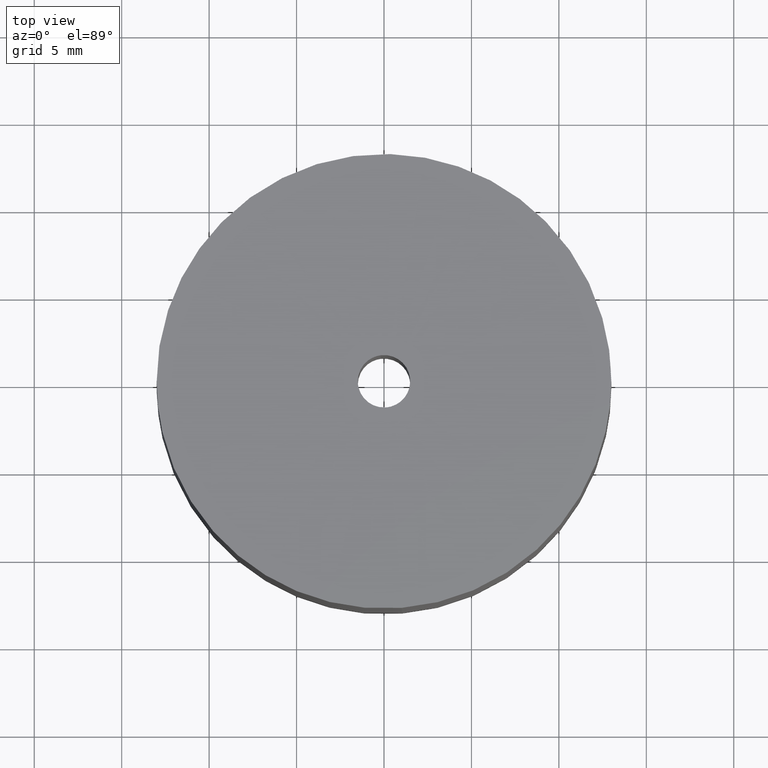
[diagram: clean part render]
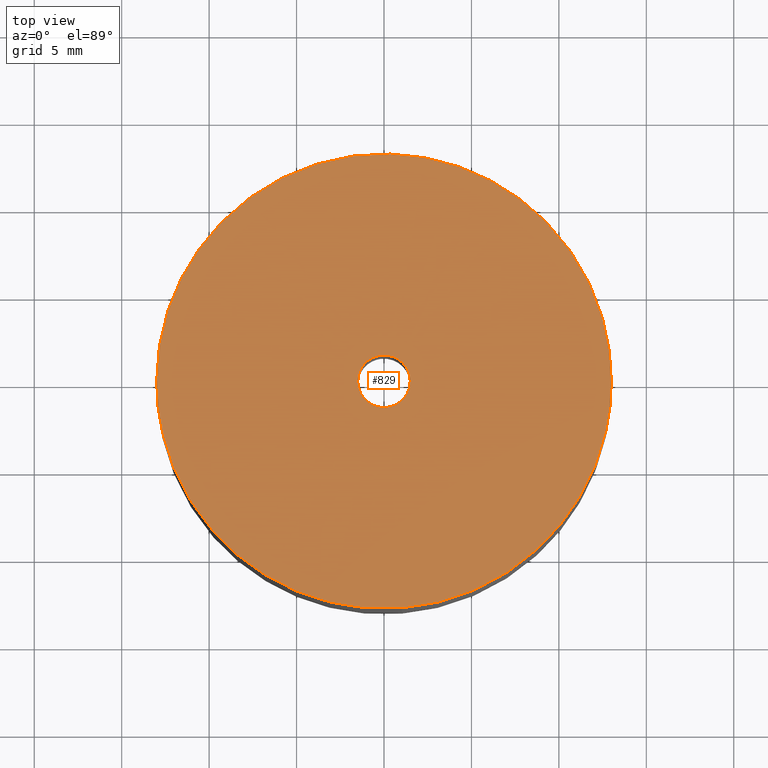
[diagram: same view with one face highlighted and labeled with its STEP entity id]
A machine part, top view. The second image highlights one B-rep face of the part: STEP entity #829.
In plain terms, the highlighted face is a freeform B-spline surface patch.
Its self-contained STEP definition (entity closure, byte-faithful):
#79=CARTESIAN_POINT('',(12.687596976655650,-2.832822436703005,20.0));
#80=VERTEX_POINT('',#79);
#86=CARTESIAN_POINT('',(1.019960790914386,-12.959925925133270,20.0));
#87=VERTEX_POINT('',#86);
#88=CARTESIAN_POINT('',(12.687596976655650,-2.832822436703005,19.999999999999996));
#89=CARTESIAN_POINT('',(10.594716066193335,-12.206381883309835,20.000000000000004));
#90=CARTESIAN_POINT('',(1.019960790914386,-12.959925925133268,20.000000000000004));
#98=(BOUNDED_CURVE()B_SPLINE_CURVE(2,(#88,#89,#90),.UNSPECIFIED.,.F.,.U.)B_SPLINE_CURVE_WITH_KNOTS((3,3),(0.537286561689504,0.736331399222893),.UNSPECIFIED.)CURVE()GEOMETRIC_REPRESENTATION_ITEM()RATIONAL_B_SPLINE_CURVE((0.925662738128303,0.762027682414940,0.969723561921979))REPRESENTATION_ITEM(''));
#99=EDGE_CURVE('',#80,#87,#98,.T.);
#213=CARTESIAN_POINT('',(-13.0,0.0,20.0));
#214=VERTEX_POINT('',#213);
#215=CARTESIAN_POINT('',(1.019960790914386,-12.959925925133268,20.000000000000004));
#216=CARTESIAN_POINT('',(0.510767647031337,-13.0,20.0));
#217=CARTESIAN_POINT('',(0.0,-13.0,20.0));
#218=CARTESIAN_POINT('',(-13.0,-13.0,20.0));
#219=CARTESIAN_POINT('',(-13.0,0.0,20.0));
#227=(BOUNDED_CURVE()B_SPLINE_CURVE(2,(#215,#216,#217,#218,#219),.UNSPECIFIED.,.F.,.U.)B_SPLINE_CURVE_WITH_KNOTS((3,2,3),(0.736331399222893,0.750000000000000,1.0),.UNSPECIFIED.)CURVE()GEOMETRIC_REPRESENTATION_ITEM()RATIONAL_B_SPLINE_CURVE((0.969723561921979,0.983986238086868,1.0,0.707106781186547,1.0))REPRESENTATION_ITEM(''));
#228=EDGE_CURVE('',#87,#214,#227,.T.);
#230=CARTESIAN_POINT('',(13.0,0.0,20.0));
#231=VERTEX_POINT('',#230);
#232=CARTESIAN_POINT('',(-13.0,0.0,20.0));
#233=CARTESIAN_POINT('',(-13.0,13.0,20.0));
#234=CARTESIAN_POINT('',(0.0,13.0,20.0));
#235=CARTESIAN_POINT('',(13.0,13.0,20.0));
#236=CARTESIAN_POINT('',(13.0,0.0,20.0));
#244=(BOUNDED_CURVE()B_SPLINE_CURVE(2,(#232,#233,#234,#235,#236),.UNSPECIFIED.,.F.,.U.)B_SPLINE_CURVE_WITH_KNOTS((3,2,3),(0.0,0.250000000000000,0.500000000000000),.UNSPECIFIED.)CURVE()GEOMETRIC_REPRESENTATION_ITEM()RATIONAL_B_SPLINE_CURVE((1.0,0.707106781186547,1.0,0.707106781186547,1.0))REPRESENTATION_ITEM(''));
#245=EDGE_CURVE('',#214,#231,#244,.T.);
#247=CARTESIAN_POINT('',(13.0,0.0,20.0));
#248=CARTESIAN_POINT('',(13.000000000000005,-1.433637086046247,20.000000000000004));
#249=CARTESIAN_POINT('',(12.687596976655650,-2.832822436703005,19.999999999999996));
#257=(BOUNDED_CURVE()B_SPLINE_CURVE(2,(#247,#248,#249),.UNSPECIFIED.,.F.,.U.)B_SPLINE_CURVE_WITH_KNOTS((3,3),(0.500000000000000,0.537286561689504),.UNSPECIFIED.)CURVE()GEOMETRIC_REPRESENTATION_ITEM()RATIONAL_B_SPLINE_CURVE((1.0,0.956316075713099,0.925662738128303))REPRESENTATION_ITEM(''));
#258=EDGE_CURVE('',#231,#80,#257,.T.);
#286=CARTESIAN_POINT('',(-0.177051352032236,1.489514289539901,20.0));
#287=VERTEX_POINT('',#286);
#288=CARTESIAN_POINT('',(1.500000000000000,0.0,20.0));
#289=VERTEX_POINT('',#288);
#290=CARTESIAN_POINT('',(-0.177051352032236,1.489514289539901,19.999999999999996));
#291=CARTESIAN_POINT('',(-0.088836179525462,1.500000000000000,20.000000000000004));
#292=CARTESIAN_POINT('',(0.0,1.500000000000000,20.0));
#293=CARTESIAN_POINT('',(1.500000000000000,1.500000000000000,19.999999999999996));
#294=CARTESIAN_POINT('',(1.500000000000000,0.0,20.0));
#302=(BOUNDED_CURVE()B_SPLINE_CURVE(2,(#290,#291,#292,#293,#294),.UNSPECIFIED.,.F.,.U.)B_SPLINE_CURVE_WITH_KNOTS((3,2,3),(0.229562473504956,0.250000000000000,0.500000000000000),.UNSPECIFIED.)CURVE()GEOMETRIC_REPRESENTATION_ITEM()RATIONAL_B_SPLINE_CURVE((0.956026754166937,0.976055948321126,1.0,0.707106781186548,1.0))REPRESENTATION_ITEM(''));
#303=EDGE_CURVE('',#287,#289,#302,.T.);
#344=CARTESIAN_POINT('',(0.091572809317482,-1.497202197631871,20.0));
#345=VERTEX_POINT('',#344);
#351=CARTESIAN_POINT('',(1.500000000000000,0.0,20.0));
#352=CARTESIAN_POINT('',(1.500000000000000,-1.411059100329843,20.0));
#353=CARTESIAN_POINT('',(0.091572809317482,-1.497202197631871,20.0));
#361=(BOUNDED_CURVE()B_SPLINE_CURVE(2,(#351,#352,#353),.UNSPECIFIED.,.F.,.U.)B_SPLINE_CURVE_WITH_KNOTS((3,3),(0.500000000000000,0.739332962238465),.UNSPECIFIED.)CURVE()GEOMETRIC_REPRESENTATION_ITEM()RATIONAL_B_SPLINE_CURVE((1.0,0.719603993287270,0.976072041665695))REPRESENTATION_ITEM(''));
#362=EDGE_CURVE('',#289,#345,#361,.T.);
#385=CARTESIAN_POINT('',(-1.500000000000000,0.0,20.0));
#386=VERTEX_POINT('',#385);
#387=CARTESIAN_POINT('',(-1.500000000000000,0.0,20.0));
#388=CARTESIAN_POINT('',(-1.500000000000000,1.332261788842205,20.000000000000004));
#389=CARTESIAN_POINT('',(-0.177051352032237,1.489514289539901,20.000000000000004));
#397=(BOUNDED_CURVE()B_SPLINE_CURVE(2,(#387,#388,#389),.UNSPECIFIED.,.F.,.U.)B_SPLINE_CURVE_WITH_KNOTS((3,3),(0.0,0.229562473504956),.UNSPECIFIED.)CURVE()GEOMETRIC_REPRESENTATION_ITEM()RATIONAL_B_SPLINE_CURVE((1.0,0.731050832865422,0.956026754166937))REPRESENTATION_ITEM(''));
#398=EDGE_CURVE('',#386,#287,#397,.T.);
#400=CARTESIAN_POINT('',(0.091572809317482,-1.497202197631870,20.0));
#401=CARTESIAN_POINT('',(0.045829144963122,-1.500000000000000,19.999999999999996));
#402=CARTESIAN_POINT('',(0.0,-1.500000000000000,20.0));
#403=CARTESIAN_POINT('',(-1.500000000000000,-1.500000000000000,19.999999999999996));
#404=CARTESIAN_POINT('',(-1.500000000000000,0.0,20.0));
#412=(BOUNDED_CURVE()B_SPLINE_CURVE(2,(#400,#401,#402,#403,#404),.UNSPECIFIED.,.F.,.U.)B_SPLINE_CURVE_WITH_KNOTS((3,2,3),(0.739332962238466,0.750000000000000,1.0),.UNSPECIFIED.)CURVE()GEOMETRIC_REPRESENTATION_ITEM()RATIONAL_B_SPLINE_CURVE((0.976072041665695,0.987502787899278,1.0,0.707106781186548,1.0))REPRESENTATION_ITEM(''));
#413=EDGE_CURVE('',#345,#386,#412,.T.);
#812=CARTESIAN_POINT('',(14.298699949606950,-14.294911992558539,20.0));
#813=CARTESIAN_POINT('',(-14.298700646981301,-14.294911992558539,20.0));
#814=CARTESIAN_POINT('',(14.298699949606950,14.298520439871851,20.0));
#815=CARTESIAN_POINT('',(-14.298700646981301,14.298520439871851,20.0));
#816=B_SPLINE_SURFACE_WITH_KNOTS('',1,1,((#812,#814),(#813,#815)),.UNSPECIFIED.,.F.,.F.,.U.,(2,2),(2,2),(0.0,28.597400596588251),(0.0,28.593432432430379),.UNSPECIFIED.);
#817=ORIENTED_EDGE('',*,*,#228,.F.);
#818=ORIENTED_EDGE('',*,*,#99,.F.);
#819=ORIENTED_EDGE('',*,*,#258,.F.);
#820=ORIENTED_EDGE('',*,*,#245,.F.);
#821=EDGE_LOOP('',(#817,#818,#819,#820));
#822=FACE_OUTER_BOUND('',#821,.T.);
#823=ORIENTED_EDGE('',*,*,#362,.T.);
#824=ORIENTED_EDGE('',*,*,#413,.T.);
#825=ORIENTED_EDGE('',*,*,#398,.T.);
#826=ORIENTED_EDGE('',*,*,#303,.T.);
#827=EDGE_LOOP('',(#823,#824,#825,#826));
#828=FACE_BOUND('',#827,.T.);
#829=ADVANCED_FACE('',(#822,#828),#816,.F.);